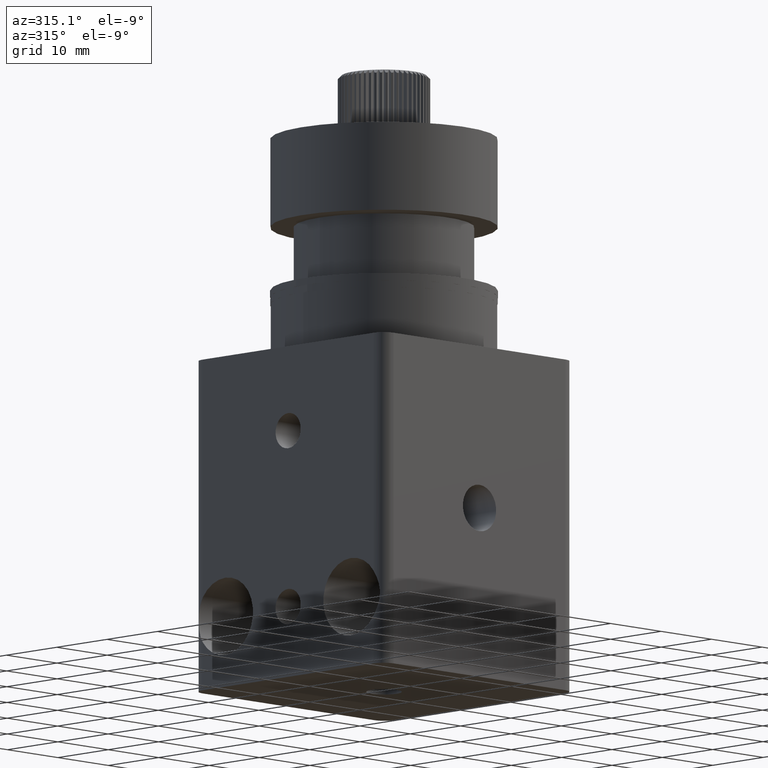
[diagram: clean part render]
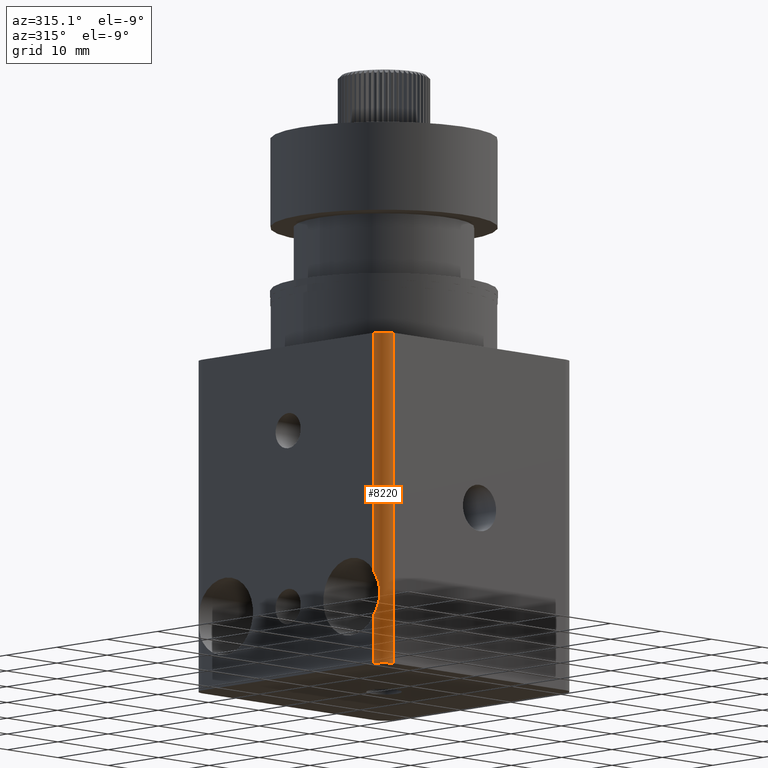
[diagram: same view with one face highlighted and labeled with its STEP entity id]
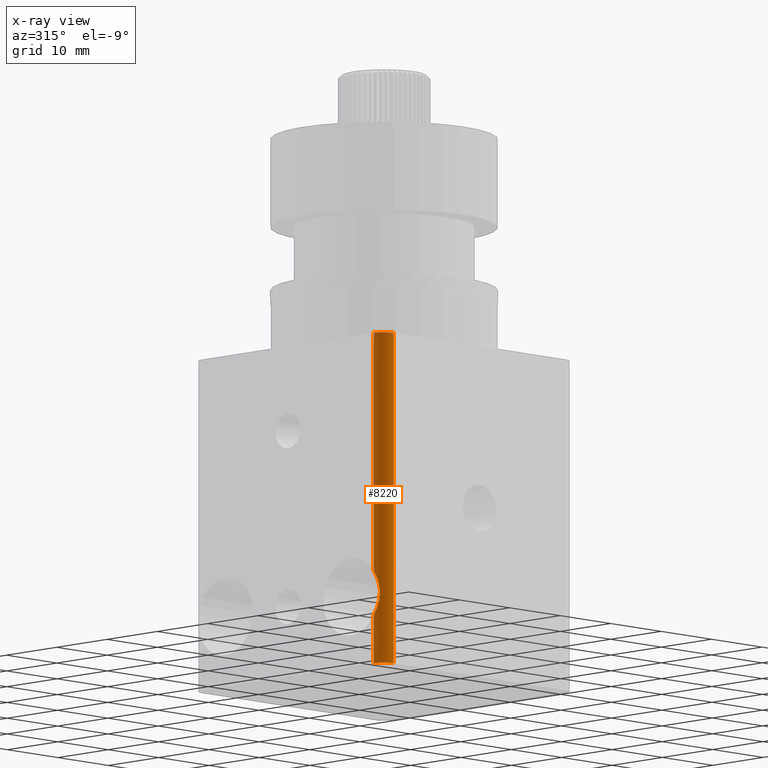
[diagram: x-ray of the same camera — body ghosted, the highlighted face saturated]
A machine part, auxiliary view. The second image highlights one B-rep face of the part: STEP entity #8220.
The next image is the same camera in x-ray: the body ghosted, the highlighted face saturated — about 0% of this face is hidden behind the body in this view.
In plain terms, the highlighted cylindrical surface (edge-blend (fillet) strip) has radius 2 mm, axis along (0, 0, -1).
Its self-contained STEP definition (entity closure, byte-faithful):
#79 = CARTESIAN_POINT ( 'NONE',  ( 18.62291667820559500, 35.78689962133746100, 10.06521551256134700 ) ) ;
#402 = CARTESIAN_POINT ( 'NONE',  ( 18.69824393421126300, 35.21314232439307500, 15.42404401907480800 ) ) ;
#447 = VERTEX_POINT ( 'NONE', #79 ) ;
#548 = CARTESIAN_POINT ( 'NONE',  ( 18.89080098623712400, 34.78701200447819300, 13.51347240408831500 ) ) ;
#775 = CARTESIAN_POINT ( 'NONE',  ( 18.73265878038447600, 35.12715359383442100, 11.30234771999779200 ) ) ;
#954 = CARTESIAN_POINT ( 'NONE',  ( 18.62291667820559500, 35.78689962133746100, 16.38977083289809000 ) ) ;
#1069 = DIRECTION ( 'NONE',  ( -0.0000000000000000000, -0.0000000000000000000, 1.000000000000000000 ) ) ;
#1103 = B_SPLINE_CURVE_WITH_KNOTS ( 'NONE', 3,
 ( #7120, #2670, #1265, #3191, #775, #2746, #2082, #7798, #7339, #548, #4958, #4931, #3666, #402, #2392, #3614 ),
 .UNSPECIFIED., .F., .F.,
 ( 4, 2, 2, 2, 2, 2, 2, 4 ),
 ( 0.0000000000000000000, 0.0008428836354101750000, 0.001685767270820350000, 0.002528650906230525000, 0.003371534541640700000, 0.004214418177050875000, 0.005057301812461050000, 0.006743069083281395600 ),
 .UNSPECIFIED. ) ;
#1108 = CYLINDRICAL_SURFACE ( 'NONE', #5462, 1.999999999999998200 ) ;
#1265 = CARTESIAN_POINT ( 'NONE',  ( 18.64253282207845100, 35.48001496110782000, 10.54010151843255700 ) ) ;
#1300 = CARTESIAN_POINT ( 'NONE',  ( 18.62291667820559500, 35.78689962133746100, 3.227493172729717600 ) ) ;
#1446 = LINE ( 'NONE', #4336, #6657 ) ;
#1818 = DIRECTION ( 'NONE',  ( -0.0000000000000000000, -0.0000000000000000000, 1.000000000000000000 ) ) ;
#2075 = ORIENTED_EDGE ( 'NONE', *, *, #5742, .F. ) ;
#2082 = CARTESIAN_POINT ( 'NONE',  ( 18.83256829977245100, 34.89415761144015000, 12.11100900622074900 ) ) ;
#2323 = CARTESIAN_POINT ( 'NONE',  ( 18.62291667820559500, 35.78689962133746100, 50.22749317272971600 ) ) ;
#2392 = CARTESIAN_POINT ( 'NONE',  ( 18.62291667820554500, 35.45918606103123200, 15.92342626108730200 ) ) ;
#2491 = CARTESIAN_POINT ( 'NONE',  ( 20.62291667820559100, 35.78689962133746100, 50.22749317272971600 ) ) ;
#2536 = DIRECTION ( 'NONE',  ( -1.000000000000000000, 0.0000000000000000000, 0.0000000000000000000 ) ) ;
#2560 = VECTOR ( 'NONE', #7552, 1000.000000000000000 ) ;
#2670 = CARTESIAN_POINT ( 'NONE',  ( 18.62291667820559100, 35.62308011956972100, 10.29833475039436800 ) ) ;
#2704 = CARTESIAN_POINT ( 'NONE',  ( 20.62291667820559100, 33.78689962133746100, 50.22749317272971600 ) ) ;
#2746 = CARTESIAN_POINT ( 'NONE',  ( 18.80064860408579000, 34.95763560600529000, 11.83892947689386900 ) ) ;
#2851 = VECTOR ( 'NONE', #1069, 1000.000000000000000 ) ;
#3022 = CIRCLE ( 'NONE', #3509, 1.999999999999998200 ) ;
#3039 = DIRECTION ( 'NONE',  ( 0.0000000000000000000, 0.0000000000000000000, 1.000000000000000000 ) ) ;
#3097 = EDGE_LOOP ( 'NONE', ( #7802, #5978, #7630, #5641, #2075, #8224 ) ) ;
#3191 = CARTESIAN_POINT ( 'NONE',  ( 18.69719074157496800, 35.23221229564723000, 11.04154942234555000 ) ) ;
#3315 = EDGE_CURVE ( 'NONE', #4196, #3681, #4244, .T. ) ;
#3509 = AXIS2_PLACEMENT_3D ( 'NONE', #3731, #7545, #2536 ) ;
#3614 = CARTESIAN_POINT ( 'NONE',  ( 18.62291667820559500, 35.78689962133746100, 16.38977083289809000 ) ) ;
#3666 = CARTESIAN_POINT ( 'NONE',  ( 18.80044497310615600, 34.95805250881914400, 14.61776315860440400 ) ) ;
#3681 = VERTEX_POINT ( 'NONE', #5332 ) ;
#3698 = VERTEX_POINT ( 'NONE', #954 ) ;
#3731 = CARTESIAN_POINT ( 'NONE',  ( 20.62291667820559100, 35.78689962133746100, 3.227493172729717600 ) ) ;
#3740 = VERTEX_POINT ( 'NONE', #6873 ) ;
#3751 = CIRCLE ( 'NONE', #6849, 1.999999999999998200 ) ;
#3844 = EDGE_CURVE ( 'NONE', #3681, #5062, #3022, .T. ) ;
#4052 = EDGE_CURVE ( 'NONE', #447, #3698, #1103, .T. ) ;
#4196 = VERTEX_POINT ( 'NONE', #2704 ) ;
#4244 = LINE ( 'NONE', #7609, #2560 ) ;
#4263 = DIRECTION ( 'NONE',  ( -1.000000000000000000, 0.0000000000000000000, 0.0000000000000000000 ) ) ;
#4336 = CARTESIAN_POINT ( 'NONE',  ( 18.62291667820559500, 35.78689962133746100, 50.22749317272971600 ) ) ;
#4603 = EDGE_CURVE ( 'NONE', #3698, #3740, #4962, .T. ) ;
#4931 = CARTESIAN_POINT ( 'NONE',  ( 18.83243315383402800, 34.89442728191019700, 14.34519096576505100 ) ) ;
#4958 = CARTESIAN_POINT ( 'NONE',  ( 18.87765468701070800, 34.80894322671689900, 13.79317862126088400 ) ) ;
#4962 = LINE ( 'NONE', #2323, #2851 ) ;
#4998 = CARTESIAN_POINT ( 'NONE',  ( 20.62291667820559100, 35.78689962133746100, 50.22749317272971600 ) ) ;
#5062 = VERTEX_POINT ( 'NONE', #1300 ) ;
#5332 = CARTESIAN_POINT ( 'NONE',  ( 20.62291667820559100, 33.78689962133746100, 3.227493172729717600 ) ) ;
#5462 = AXIS2_PLACEMENT_3D ( 'NONE', #2491, #5597, #7582 ) ;
#5597 = DIRECTION ( 'NONE',  ( 0.0000000000000000000, 0.0000000000000000000, -1.000000000000000000 ) ) ;
#5641 = ORIENTED_EDGE ( 'NONE', *, *, #3315, .F. ) ;
#5742 = EDGE_CURVE ( 'NONE', #3740, #4196, #3751, .T. ) ;
#5978 = ORIENTED_EDGE ( 'NONE', *, *, #6185, .F. ) ;
#6185 = EDGE_CURVE ( 'NONE', #5062, #447, #1446, .T. ) ;
#6240 = FACE_OUTER_BOUND ( 'NONE', #3097, .T. ) ;
#6657 = VECTOR ( 'NONE', #1818, 1000.000000000000000 ) ;
#6849 = AXIS2_PLACEMENT_3D ( 'NONE', #4998, #3039, #4263 ) ;
#6873 = CARTESIAN_POINT ( 'NONE',  ( 18.62291667820559500, 35.78689962133746100, 50.22749317272971600 ) ) ;
#7120 = CARTESIAN_POINT ( 'NONE',  ( 18.62291667820559500, 35.78689962133746100, 10.06521551256134700 ) ) ;
#7339 = CARTESIAN_POINT ( 'NONE',  ( 18.89093026091190800, 34.78678809404554800, 12.94585314325751600 ) ) ;
#7545 = DIRECTION ( 'NONE',  ( -0.0000000000000000000, -0.0000000000000000000, -1.000000000000000000 ) ) ;
#7552 = DIRECTION ( 'NONE',  ( 0.0000000000000000000, -0.0000000000000000000, -1.000000000000000000 ) ) ;
#7582 = DIRECTION ( 'NONE',  ( -1.000000000000000000, 0.0000000000000000000, 0.0000000000000000000 ) ) ;
#7609 = CARTESIAN_POINT ( 'NONE',  ( 20.62291667820559100, 33.78689962133746100, 50.22749317272971600 ) ) ;
#7630 = ORIENTED_EDGE ( 'NONE', *, *, #3844, .F. ) ;
#7798 = CARTESIAN_POINT ( 'NONE',  ( 18.87777727315647500, 34.80872577720826700, 12.66374268459215100 ) ) ;
#7802 = ORIENTED_EDGE ( 'NONE', *, *, #4052, .F. ) ;
#8220 = ADVANCED_FACE ( 'NONE', ( #6240 ), #1108, .T. ) ;
#8224 = ORIENTED_EDGE ( 'NONE', *, *, #4603, .F. ) ;